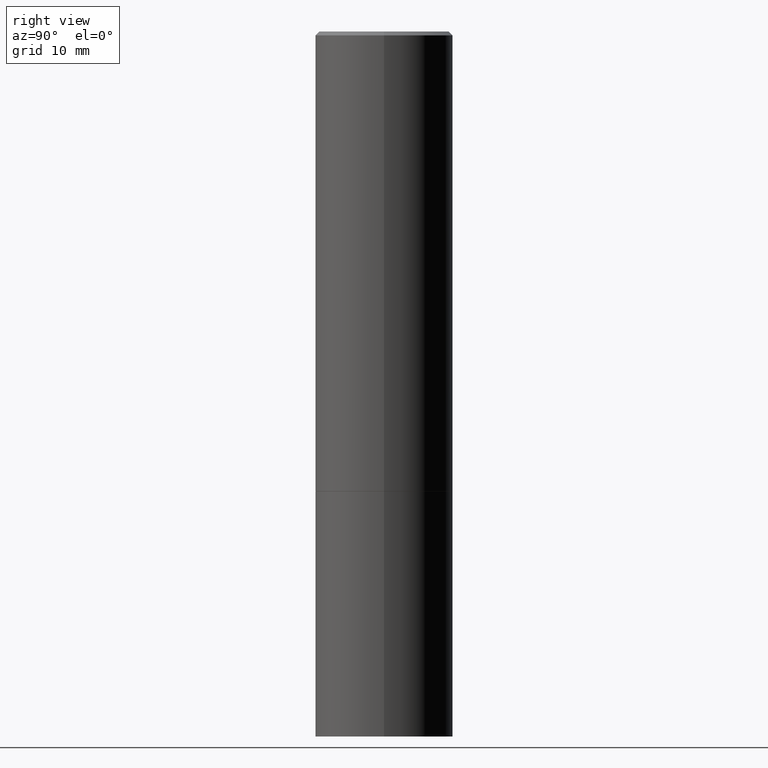
[diagram: clean part render]
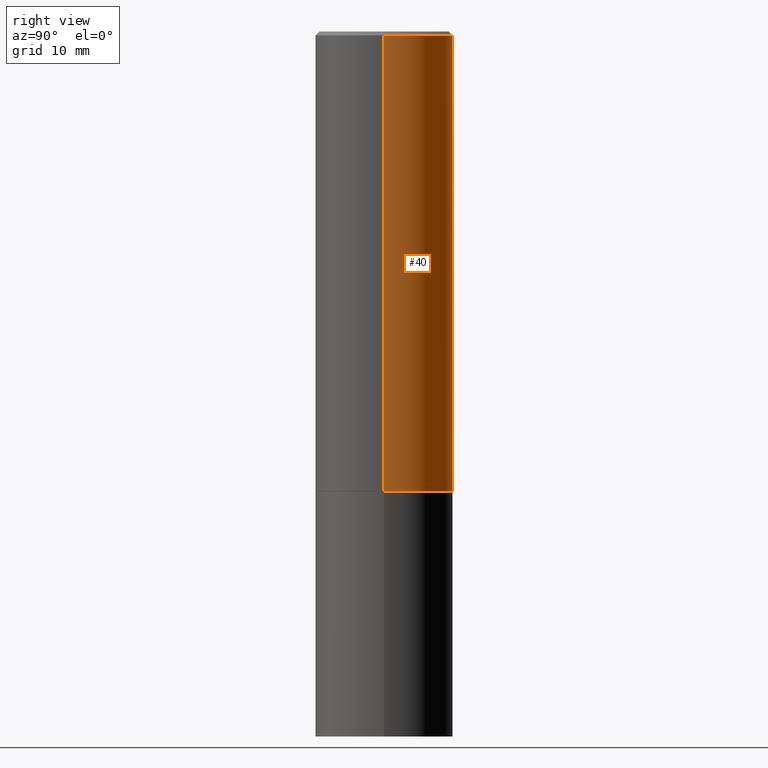
[diagram: same view with one face highlighted and labeled with its STEP entity id]
A machine part, right view. The second image highlights one B-rep face of the part: STEP entity #40.
In plain terms, the highlighted cylindrical surface (partial cylindrical patch) has radius 9.0005 mm, axis along (-0, 0, 1).
Its self-contained STEP definition (entity closure, byte-faithful):
#6 = CARTESIAN_POINT ( 'NONE',  ( 5.774240945164344150E-29, -8.244085737276433464E-15, -2.361199999999999743 ) ) ;
#18 = CYLINDRICAL_SURFACE ( 'NONE', #32, 0.3543499999999998873 ) ;
#24 = VECTOR ( 'NONE', #100, 39.37007874015748143 ) ;
#26 = EDGE_CURVE ( 'NONE', #151, #29, #81, .T. ) ;
#27 = ORIENTED_EDGE ( 'NONE', *, *, #170, .F. ) ;
#29 = VERTEX_POINT ( 'NONE', #45 ) ;
#32 = AXIS2_PLACEMENT_3D ( 'NONE', #270, #76, #52 ) ;
#40 = ADVANCED_FACE ( 'NONE', ( #326 ), #18, .T. ) ;
#45 = CARTESIAN_POINT ( 'NONE',  ( -0.3543499999999997208, 2.404583198061263424E-15, -0.02000000000000008021 ) ) ;
#50 = CARTESIAN_POINT ( 'NONE',  ( 0.3543499999999999983, -1.071849856211456176E-14, -2.361199999999999743 ) ) ;
#52 = DIRECTION ( 'NONE',  ( 1.000000000000000000, -6.982962677686266711E-15, 4.876176775795935232E-29 ) ) ;
#64 = CIRCLE ( 'NONE', #314, 0.3543499999999997208 ) ;
#68 = ORIENTED_EDGE ( 'NONE', *, *, #133, .T. ) ;
#76 = DIRECTION ( 'NONE',  ( -2.445468806185136597E-29, 3.491481338843145583E-15, 1.000000000000000000 ) ) ;
#81 = LINE ( 'NONE', #266, #154 ) ;
#100 = DIRECTION ( 'NONE',  ( -2.445468806185136877E-29, 3.491481338843145188E-15, 1.000000000000000000 ) ) ;
#105 = CARTESIAN_POINT ( 'NONE',  ( 4.890937612370293302E-31, -6.982962677686318726E-17, -0.02000000000000008021 ) ) ;
#127 = DIRECTION ( 'NONE',  ( -2.445468806185136597E-29, 3.491481338843145583E-15, 1.000000000000000000 ) ) ;
#133 = EDGE_CURVE ( 'NONE', #327, #151, #146, .T. ) ;
#145 = CARTESIAN_POINT ( 'NONE',  ( 0.3543499999999998873, -2.474412824838127905E-15, 1.727873240503289188E-29 ) ) ;
#146 = CIRCLE ( 'NONE', #248, 0.3543499999999999983 ) ;
#151 = VERTEX_POINT ( 'NONE', #324 ) ;
#154 = VECTOR ( 'NONE', #163, 39.37007874015748143 ) ;
#163 = DIRECTION ( 'NONE',  ( -2.445468806185136877E-29, 3.491481338843145188E-15, 1.000000000000000000 ) ) ;
#170 = EDGE_CURVE ( 'NONE', #327, #312, #204, .T. ) ;
#186 = DIRECTION ( 'NONE',  ( 1.000000000000000000, -6.982962677686266711E-15, 0.000000000000000000 ) ) ;
#204 = LINE ( 'NONE', #145, #24 ) ;
#205 = ORIENTED_EDGE ( 'NONE', *, *, #26, .T. ) ;
#208 = EDGE_CURVE ( 'NONE', #312, #29, #64, .T. ) ;
#223 = EDGE_LOOP ( 'NONE', ( #68, #205, #343, #27 ) ) ;
#248 = AXIS2_PLACEMENT_3D ( 'NONE', #6, #127, #352 ) ;
#266 = CARTESIAN_POINT ( 'NONE',  ( -0.3543499999999998873, 2.517808184165914208E-15, -1.743024649231825225E-29 ) ) ;
#270 = CARTESIAN_POINT ( 'NONE',  ( 0.000000000000000000, 0.000000000000000000, 0.000000000000000000 ) ) ;
#312 = VERTEX_POINT ( 'NONE', #328 ) ;
#314 = AXIS2_PLACEMENT_3D ( 'NONE', #105, #325, #186 ) ;
#324 = CARTESIAN_POINT ( 'NONE',  ( -0.3543499999999999983, -1.639149497860731807E-15, -2.361199999999999743 ) ) ;
#325 = DIRECTION ( 'NONE',  ( -2.445468806185136597E-29, 3.491481338843145583E-15, 1.000000000000000000 ) ) ;
#326 = FACE_OUTER_BOUND ( 'NONE', #223, .T. ) ;
#327 = VERTEX_POINT ( 'NONE', #50 ) ;
#328 = CARTESIAN_POINT ( 'NONE',  ( 0.3543499999999997208, -2.500847092287203718E-15, -0.02000000000000008021 ) ) ;
#343 = ORIENTED_EDGE ( 'NONE', *, *, #208, .F. ) ;
#352 = DIRECTION ( 'NONE',  ( 1.000000000000000000, -6.982962677686265922E-15, 0.000000000000000000 ) ) ;